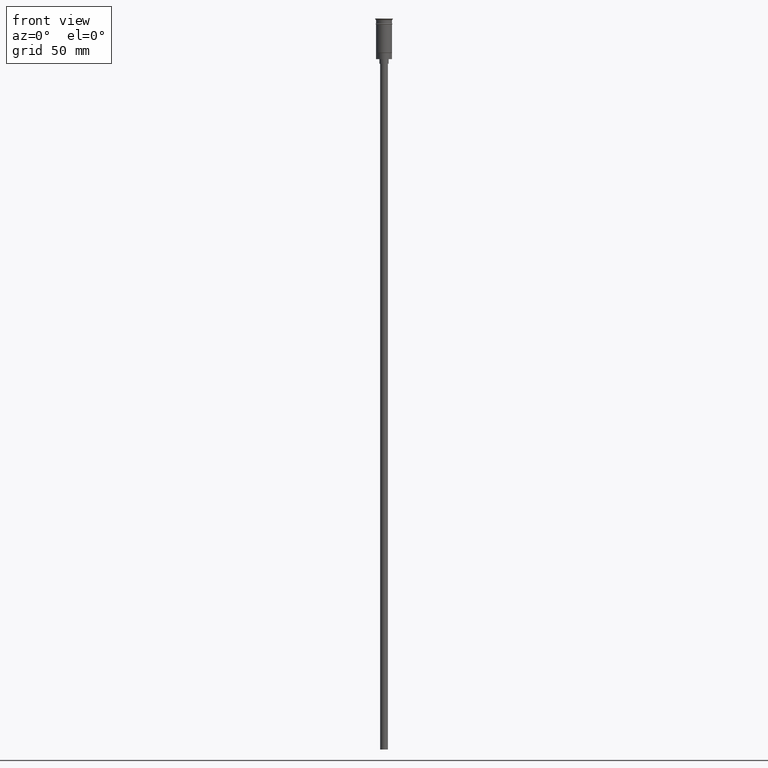
[diagram: clean part render]
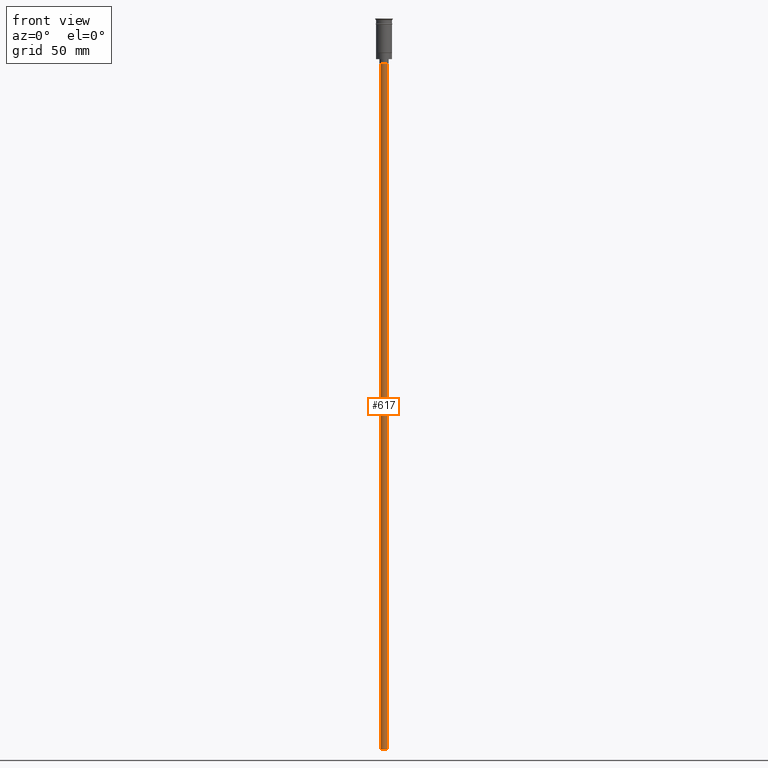
[diagram: same view with one face highlighted and labeled with its STEP entity id]
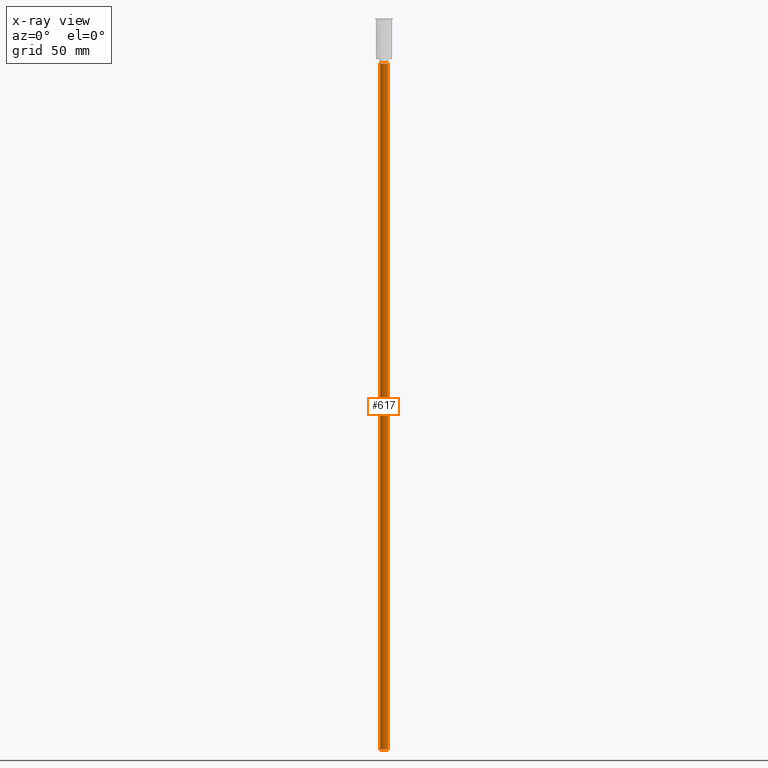
[diagram: x-ray of the same camera — body ghosted, the highlighted face saturated]
A machine part, front view. The second image highlights one B-rep face of the part: STEP entity #617.
The next image is the same camera in x-ray: the body ghosted, the highlighted face saturated — about 0% of this face is hidden behind the body in this view.
In plain terms, the highlighted cylindrical surface (edge-blend (fillet) strip) has radius 2.5 mm, axis along (-0, -0, 1).
Its self-contained STEP definition (entity closure, byte-faithful):
#55 = DIRECTION ( 'NONE',  ( -0.000000000000000000, -0.000000000000000000, 1.000000000000000000 ) ) ;
#67 = EDGE_CURVE ( 'NONE', #183, #538, #363, .T. ) ;
#133 = CARTESIAN_POINT ( 'NONE',  ( 2.500000000000000000, 0.000000000000000000, -29.50000000000000000 ) ) ;
#166 = CARTESIAN_POINT ( 'NONE',  ( 0.000000000000000000, 0.000000000000000000, -476.5000000000000568 ) ) ;
#183 = VERTEX_POINT ( 'NONE', #663 ) ;
#328 = DIRECTION ( 'NONE',  ( 0.000000000000000000, 0.000000000000000000, -1.000000000000000000 ) ) ;
#363 = LINE ( 'NONE', #1290, #959 ) ;
#398 = AXIS2_PLACEMENT_3D ( 'NONE', #1139, #1514, #892 ) ;
#432 = DIRECTION ( 'NONE',  ( -1.000000000000000000, 0.000000000000000000, 0.000000000000000000 ) ) ;
#506 = ORIENTED_EDGE ( 'NONE', *, *, #1443, .F. ) ;
#516 = DIRECTION ( 'NONE',  ( -0.000000000000000000, -0.000000000000000000, 1.000000000000000000 ) ) ;
#538 = VERTEX_POINT ( 'NONE', #133 ) ;
#543 = CARTESIAN_POINT ( 'NONE',  ( -2.500000000000000000, 3.061616997868383141E-16, -476.5000000000000568 ) ) ;
#553 = AXIS2_PLACEMENT_3D ( 'NONE', #1052, #328, #1442 ) ;
#556 = VERTEX_POINT ( 'NONE', #768 ) ;
#617 = ADVANCED_FACE ( 'NONE', ( #1245 ), #644, .T. ) ;
#644 = CYLINDRICAL_SURFACE ( 'NONE', #398, 2.500000000000000000 ) ;
#663 = CARTESIAN_POINT ( 'NONE',  ( 2.500000000000000000, 0.000000000000000000, -476.5000000000000568 ) ) ;
#755 = CIRCLE ( 'NONE', #1149, 2.500000000000000000 ) ;
#768 = CARTESIAN_POINT ( 'NONE',  ( -2.500000000000000000, 3.061616997868383141E-16, -476.5000000000000568 ) ) ;
#771 = EDGE_CURVE ( 'NONE', #538, #1453, #989, .T. ) ;
#892 = DIRECTION ( 'NONE',  ( 1.000000000000000000, 0.000000000000000000, 0.000000000000000000 ) ) ;
#921 = DIRECTION ( 'NONE',  ( 0.000000000000000000, 0.000000000000000000, -1.000000000000000000 ) ) ;
#951 = EDGE_LOOP ( 'NONE', ( #506, #1456, #1542, #1447 ) ) ;
#959 = VECTOR ( 'NONE', #516, 1000.000000000000000 ) ;
#965 = EDGE_CURVE ( 'NONE', #183, #556, #755, .T. ) ;
#987 = VECTOR ( 'NONE', #55, 1000.000000000000000 ) ;
#989 = CIRCLE ( 'NONE', #553, 2.500000000000000000 ) ;
#1035 = LINE ( 'NONE', #543, #987 ) ;
#1052 = CARTESIAN_POINT ( 'NONE',  ( 0.000000000000000000, 0.000000000000000000, -29.50000000000000000 ) ) ;
#1139 = CARTESIAN_POINT ( 'NONE',  ( 0.000000000000000000, 0.000000000000000000, -476.5000000000000568 ) ) ;
#1149 = AXIS2_PLACEMENT_3D ( 'NONE', #166, #921, #432 ) ;
#1245 = FACE_OUTER_BOUND ( 'NONE', #951, .T. ) ;
#1265 = CARTESIAN_POINT ( 'NONE',  ( -2.500000000000000000, 3.061616997868383141E-16, -29.50000000000000000 ) ) ;
#1290 = CARTESIAN_POINT ( 'NONE',  ( 2.500000000000000000, 0.000000000000000000, -476.5000000000000568 ) ) ;
#1442 = DIRECTION ( 'NONE',  ( -1.000000000000000000, 0.000000000000000000, 0.000000000000000000 ) ) ;
#1443 = EDGE_CURVE ( 'NONE', #556, #1453, #1035, .T. ) ;
#1447 = ORIENTED_EDGE ( 'NONE', *, *, #771, .T. ) ;
#1453 = VERTEX_POINT ( 'NONE', #1265 ) ;
#1456 = ORIENTED_EDGE ( 'NONE', *, *, #965, .F. ) ;
#1514 = DIRECTION ( 'NONE',  ( -0.000000000000000000, -0.000000000000000000, 1.000000000000000000 ) ) ;
#1542 = ORIENTED_EDGE ( 'NONE', *, *, #67, .T. ) ;